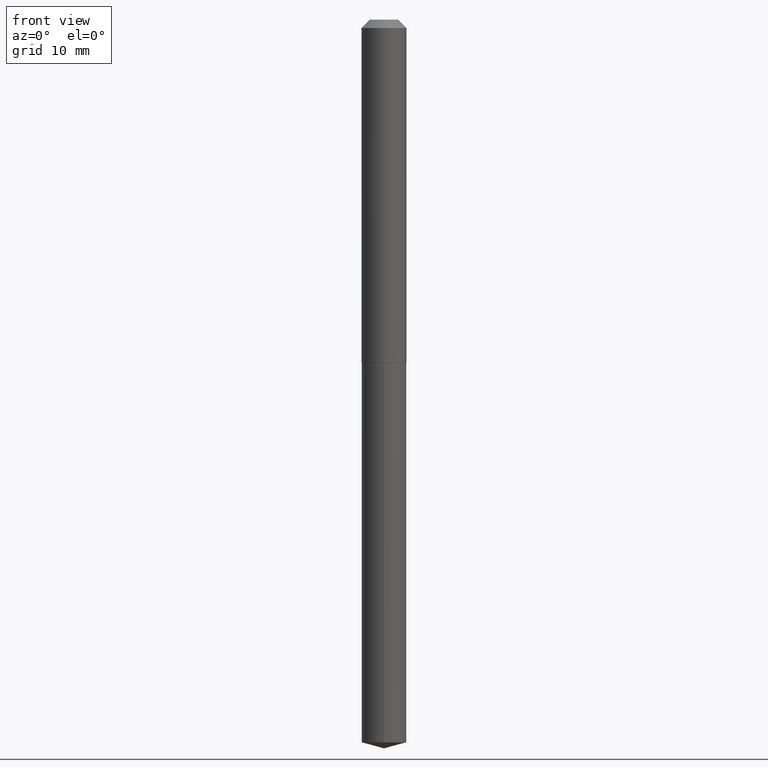
[diagram: clean part render]
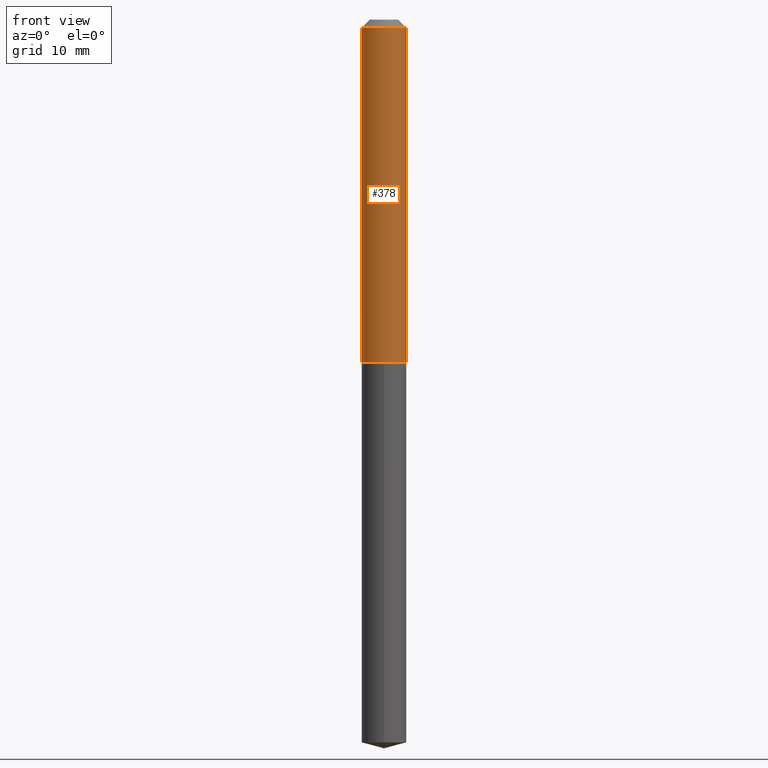
[diagram: same view with one face highlighted and labeled with its STEP entity id]
A machine part, front view. The second image highlights one B-rep face of the part: STEP entity #378.
In plain terms, the highlighted cylindrical surface (edge-blend (fillet) strip) has radius 2.1527 mm, axis along (-0, 0, 1).
Its self-contained STEP definition (entity closure, byte-faithful):
#2 = DIRECTION ( 'NONE',  ( -2.445468806185136597E-29, 3.491481338843145583E-15, 1.000000000000000000 ) ) ;
#4 = AXIS2_PLACEMENT_3D ( 'NONE', #139, #242, #87 ) ;
#6 = CARTESIAN_POINT ( 'NONE',  ( 0.08475000000000017242, -5.109782939396942105E-15, -1.293999999999999817 ) ) ;
#27 = VERTEX_POINT ( 'NONE', #212 ) ;
#29 = CARTESIAN_POINT ( 'NONE',  ( 0.000000000000000000, 0.000000000000000000, 0.000000000000000000 ) ) ;
#40 = CARTESIAN_POINT ( 'NONE',  ( 3.164436635203567097E-29, -4.517976852463030307E-15, -1.293999999999999817 ) ) ;
#41 = EDGE_CURVE ( 'NONE', #85, #386, #288, .T. ) ;
#50 = VECTOR ( 'NONE', #291, 39.37007874015748143 ) ;
#57 = ORIENTED_EDGE ( 'NONE', *, *, #217, .F. ) ;
#85 = VERTEX_POINT ( 'NONE', #205 ) ;
#87 = DIRECTION ( 'NONE',  ( 1.000000000000000000, -6.982962677686267499E-15, 0.000000000000000000 ) ) ;
#89 = FACE_OUTER_BOUND ( 'NONE', #270, .T. ) ;
#103 = ORIENTED_EDGE ( 'NONE', *, *, #366, .T. ) ;
#112 = CARTESIAN_POINT ( 'NONE',  ( 0.08475000000000008915, -5.918060869339116993E-16, 4.132559817487059256E-30 ) ) ;
#132 = VERTEX_POINT ( 'NONE', #225 ) ;
#139 = CARTESIAN_POINT ( 'NONE',  ( 7.642090019328600035E-31, -1.091087918388489897E-16, -0.03125000000000020123 ) ) ;
#152 = DIRECTION ( 'NONE',  ( -2.445468806185136597E-29, 3.491481338843145583E-15, 1.000000000000000000 ) ) ;
#160 = LINE ( 'NONE', #195, #50 ) ;
#174 = LINE ( 'NONE', #112, #257 ) ;
#195 = CARTESIAN_POINT ( 'NONE',  ( -0.08475000000000008915, 6.021849685566855410E-16, -4.168797488991036477E-30 ) ) ;
#199 = CYLINDRICAL_SURFACE ( 'NONE', #220, 0.08475000000000008915 ) ;
#205 = CARTESIAN_POINT ( 'NONE',  ( -0.08475000000000017242, -3.915791883906343879E-15, -1.293999999999999817 ) ) ;
#212 = CARTESIAN_POINT ( 'NONE',  ( -0.08474999999999999201, -1.711357853594253473E-15, -0.03125000000000020123 ) ) ;
#217 = EDGE_CURVE ( 'NONE', #85, #27, #160, .T. ) ;
#220 = AXIS2_PLACEMENT_3D ( 'NONE', #29, #2, #356 ) ;
#225 = CARTESIAN_POINT ( 'NONE',  ( 0.08474999999999999201, -7.009148787727601097E-16, -0.03125000000000020123 ) ) ;
#242 = DIRECTION ( 'NONE',  ( -2.445468806185136597E-29, 3.491481338843145583E-15, 1.000000000000000000 ) ) ;
#245 = CIRCLE ( 'NONE', #4, 0.08474999999999999201 ) ;
#257 = VECTOR ( 'NONE', #272, 39.37007874015748143 ) ;
#270 = EDGE_LOOP ( 'NONE', ( #57, #384, #103, #295 ) ) ;
#272 = DIRECTION ( 'NONE',  ( -2.445468806185136877E-29, 3.491481338843145188E-15, 1.000000000000000000 ) ) ;
#278 = DIRECTION ( 'NONE',  ( 1.000000000000000000, -6.982962677686264344E-15, 0.000000000000000000 ) ) ;
#280 = EDGE_CURVE ( 'NONE', #27, #132, #245, .T. ) ;
#282 = AXIS2_PLACEMENT_3D ( 'NONE', #40, #152, #278 ) ;
#288 = CIRCLE ( 'NONE', #282, 0.08475000000000017242 ) ;
#291 = DIRECTION ( 'NONE',  ( -2.445468806185136877E-29, 3.491481338843145188E-15, 1.000000000000000000 ) ) ;
#295 = ORIENTED_EDGE ( 'NONE', *, *, #280, .F. ) ;
#356 = DIRECTION ( 'NONE',  ( 1.000000000000000000, -6.982962677686266711E-15, 4.876176775795935232E-29 ) ) ;
#366 = EDGE_CURVE ( 'NONE', #386, #132, #174, .T. ) ;
#378 = ADVANCED_FACE ( 'NONE', ( #89 ), #199, .T. ) ;
#384 = ORIENTED_EDGE ( 'NONE', *, *, #41, .T. ) ;
#386 = VERTEX_POINT ( 'NONE', #6 ) ;